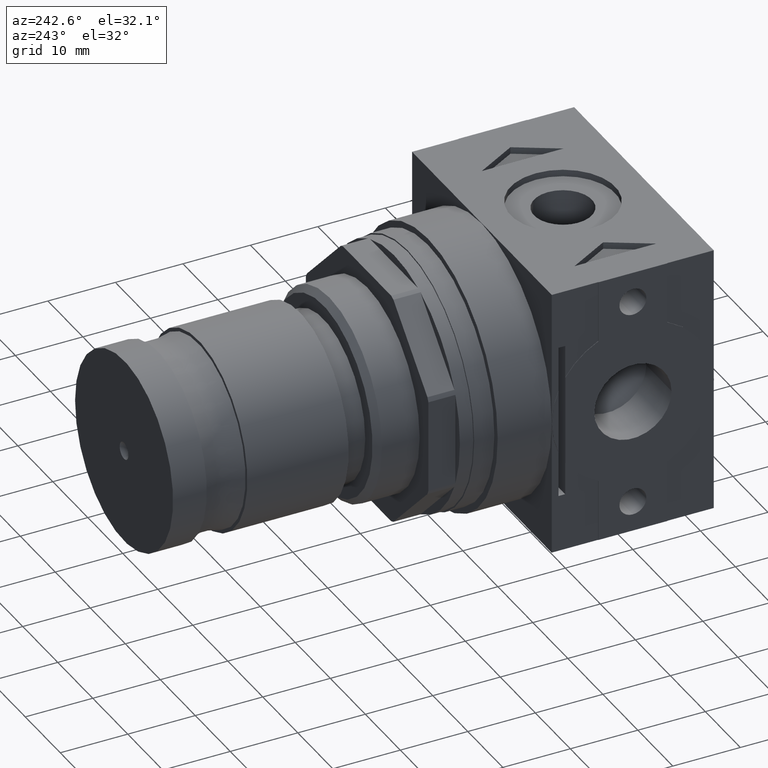
[diagram: clean part render]
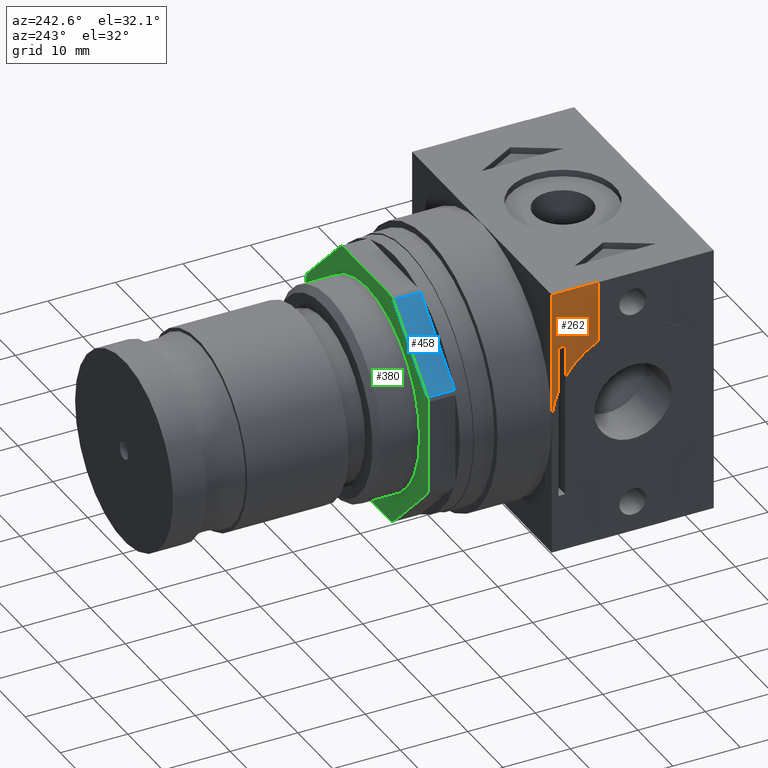
[diagram: same view with three faces highlighted in distinct colors, each labeled with its STEP entity id]
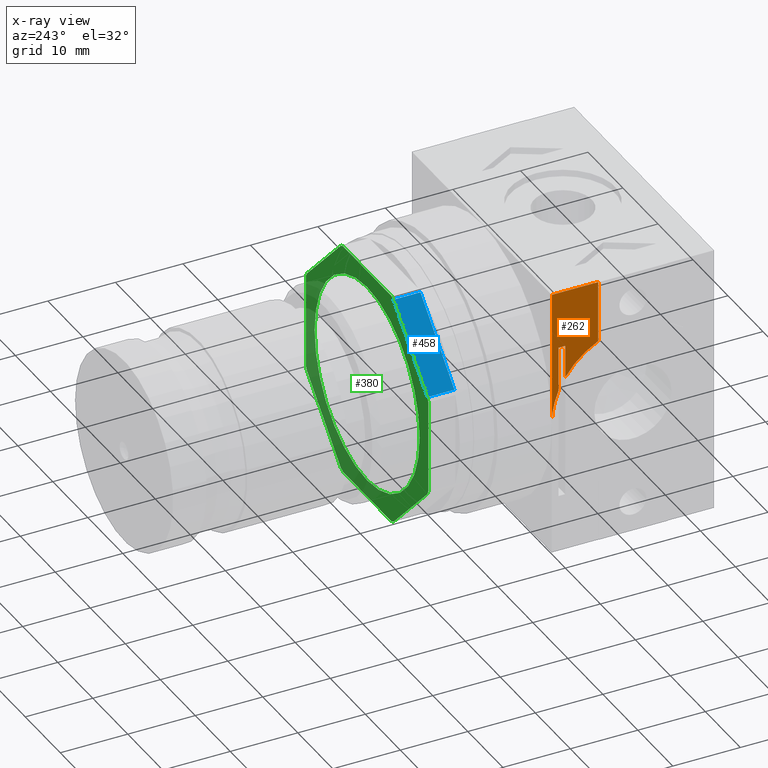
[diagram: x-ray of the same camera — body ghosted, the three highlighted faces saturated]
A machine part, auxiliary view with three faces highlighted in distinct colors.
The next image is the same camera in x-ray (body ghosted, the three faces saturated) — at least one of them is partly hidden behind the body in this view.
Their STEP definitions:

[orange] entity #262 — the highlighted planar face has unit normal (1, 0, 0).
#262 = ADVANCED_FACE( '', ( #592 ), #593, .F. );
#592 = FACE_OUTER_BOUND( '', #1037, .T. );
#593 = PLANE( '', #1038 );
#1037 = EDGE_LOOP( '', ( #1564, #1565, #1566, #1567, #1568, #1569, #1570, #1571 ) );
#1038 = AXIS2_PLACEMENT_3D( '', #1572, #1573, #1574 );
#1564 = ORIENTED_EDGE( '', *, *, #2517, .F. );
#1565 = ORIENTED_EDGE( '', *, *, #2518, .F. );
#1566 = ORIENTED_EDGE( '', *, *, #2519, .F. );
#1567 = ORIENTED_EDGE( '', *, *, #2520, .F. );
#1568 = ORIENTED_EDGE( '', *, *, #2521, .F. );
#1569 = ORIENTED_EDGE( '', *, *, #2522, .F. );
#1570 = ORIENTED_EDGE( '', *, *, #2523, .F. );
#1571 = ORIENTED_EDGE( '', *, *, #2524, .F. );
#1572 = CARTESIAN_POINT( '', ( -19.9500000000000, 0.000000000000000, 0.000000000000000 ) );
#1573 = DIRECTION( '', ( 1.00000000000000, 0.000000000000000, 0.000000000000000 ) );
#1574 = DIRECTION( '', ( 0.000000000000000, 0.000000000000000, -1.00000000000000 ) );
#2517 = EDGE_CURVE( '', #2973, #2974, #2975, .T. );
#2518 = EDGE_CURVE( '', #2976, #2973, #2977, .F. );
#2519 = EDGE_CURVE( '', #2978, #2976, #2979, .T. );
#2520 = EDGE_CURVE( '', #2980, #2978, #2981, .T. );
#2521 = EDGE_CURVE( '', #2982, #2980, #2983, .T. );
#2522 = EDGE_CURVE( '', #2984, #2982, #2985, .F. );
#2523 = EDGE_CURVE( '', #2986, #2984, #2987, .T. );
#2524 = EDGE_CURVE( '', #2974, #2986, #2988, .T. );
#2973 = VERTEX_POINT( '', #3598 );
#2974 = VERTEX_POINT( '', #3599 );
#2975 = LINE( '', #3600, #3601 );
#2976 = VERTEX_POINT( '', #3602 );
#2977 = CIRCLE( '', #3603, 12.0000000000000 );
#2978 = VERTEX_POINT( '', #3604 );
#2979 = LINE( '', #3605, #3606 );
#2980 = VERTEX_POINT( '', #3607 );
#2981 = LINE( '', #3608, #3609 );
#2982 = VERTEX_POINT( '', #3610 );
#2983 = LINE( '', #3611, #3612 );
#2984 = VERTEX_POINT( '', #3613 );
#2985 = CIRCLE( '', #3614, 12.0000000000000 );
#2986 = VERTEX_POINT( '', #3615 );
#2987 = LINE( '', #3616, #3617 );
#2988 = LINE( '', #3618, #3619 );
#3598 = CARTESIAN_POINT( '', ( -19.9500000000000, 10.0000000000000, 6.63324958071079 ) );
#3599 = CARTESIAN_POINT( '', ( -19.9500000000000, 10.0000000000000, 11.5000000000000 ) );
#3600 = CARTESIAN_POINT( '', ( -19.9500000000000, 10.0000000000000, 0.000000000000000 ) );
#3601 = VECTOR( '', #4244, 1000.00000000000 );
#3602 = CARTESIAN_POINT( '', ( -19.9500000000000, 5.10000000000000, 10.8623201941390 ) );
#3603 = AXIS2_PLACEMENT_3D( '', #4245, #4246, #4247 );
#3604 = CARTESIAN_POINT( '', ( -19.9500000000000, 5.10000000000000, 20.0000000000000 ) );
#3605 = CARTESIAN_POINT( '', ( -19.9500000000000, 5.10000000000000, 0.000000000000000 ) );
#3606 = VECTOR( '', #4248, 1000.00000000000 );
#3607 = CARTESIAN_POINT( '', ( -19.9500000000000, 12.0000000000000, 20.0000000000000 ) );
#3608 = CARTESIAN_POINT( '', ( -19.9500000000000, 12.0000000000000, 20.0000000000000 ) );
#3609 = VECTOR( '', #4249, 1000.00000000000 );
#3610 = CARTESIAN_POINT( '', ( -19.9500000000000, 12.0000000000000, 0.000000000000000 ) );
#3611 = CARTESIAN_POINT( '', ( -19.9500000000000, 12.0000000000000, -20.0000000000000 ) );
#3612 = VECTOR( '', #4250, 1000.00000000000 );
#3613 = CARTESIAN_POINT( '', ( -19.9500000000000, 11.0000000000000, 4.79583152331270 ) );
#3614 = AXIS2_PLACEMENT_3D( '', #4251, #4252, #4253 );
#3615 = CARTESIAN_POINT( '', ( -19.9500000000000, 11.0000000000000, 11.5000000000000 ) );
#3616 = CARTESIAN_POINT( '', ( -19.9500000000000, 11.0000000000000, 0.000000000000000 ) );
#3617 = VECTOR( '', #4254, 1000.00000000000 );
#3618 = CARTESIAN_POINT( '', ( -19.9500000000000, 0.000000000000000, 11.5000000000000 ) );
#3619 = VECTOR( '', #4255, 1000.00000000000 );
#4244 = DIRECTION( '', ( 0.000000000000000, -0.000000000000000, 1.00000000000000 ) );
#4245 = CARTESIAN_POINT( '', ( -19.9500000000000, -8.67361737988404E-015, -1.73472347597681E-015 ) );
#4246 = DIRECTION( '', ( 1.00000000000000, 0.000000000000000, 0.000000000000000 ) );
#4247 = DIRECTION( '', ( 0.000000000000000, 0.000000000000000, -1.00000000000000 ) );
#4248 = DIRECTION( '', ( 0.000000000000000, 0.000000000000000, -1.00000000000000 ) );
#4249 = DIRECTION( '', ( 0.000000000000000, -1.00000000000000, 0.000000000000000 ) );
#4250 = DIRECTION( '', ( 0.000000000000000, 0.000000000000000, 1.00000000000000 ) );
#4251 = CARTESIAN_POINT( '', ( -19.9500000000000, -8.67361737988404E-015, -1.73472347597681E-015 ) );
#4252 = DIRECTION( '', ( 1.00000000000000, 0.000000000000000, 0.000000000000000 ) );
#4253 = DIRECTION( '', ( 0.000000000000000, 0.000000000000000, -1.00000000000000 ) );
#4254 = DIRECTION( '', ( 0.000000000000000, 0.000000000000000, -1.00000000000000 ) );
#4255 = DIRECTION( '', ( -0.000000000000000, 1.00000000000000, 0.000000000000000 ) );

[blue] entity #458 — the highlighted planar face has unit normal (-0.7071, 0, 0.7071).
#458 = ADVANCED_FACE( '', ( #925 ), #926, .T. );
#925 = FACE_OUTER_BOUND( '', #1370, .T. );
#926 = PLANE( '', #1371 );
#1370 = EDGE_LOOP( '', ( #2391, #2392, #2393, #2394 ) );
#1371 = AXIS2_PLACEMENT_3D( '', #2395, #2396, #2397 );
#2391 = ORIENTED_EDGE( '', *, *, #2599, .T. );
#2392 = ORIENTED_EDGE( '', *, *, #2731, .T. );
#2393 = ORIENTED_EDGE( '', *, *, #2601, .T. );
#2394 = ORIENTED_EDGE( '', *, *, #2795, .T. );
#2395 = CARTESIAN_POINT( '', ( 5.00000000000000, -7.24873734152916, 17.5000000000000 ) );
#2396 = DIRECTION( '', ( 0.000000000000000, -0.707106781186547, 0.707106781186548 ) );
#2397 = DIRECTION( '', ( 0.000000000000000, -0.707106781186548, -0.707106781186547 ) );
#2599 = EDGE_CURVE( '', #3109, #3107, #3110, .T. );
#2601 = EDGE_CURVE( '', #3113, #3111, #3114, .F. );
#2731 = EDGE_CURVE( '', #3107, #3113, #3291, .T. );
#2795 = EDGE_CURVE( '', #3111, #3109, #3366, .T. );
#3107 = VERTEX_POINT( '', #3770 );
#3109 = VERTEX_POINT( '', #3772 );
#3110 = LINE( '', #3773, #3774 );
#3111 = VERTEX_POINT( '', #3775 );
#3113 = VERTEX_POINT( '', #3777 );
#3114 = LINE( '', #3778, #3779 );
#3291 = LINE( '', #4016, #4017 );
#3366 = LINE( '', #4119, #4120 );
#3770 = CARTESIAN_POINT( '', ( 9.00000000000000, -17.2318371472449, 7.51690019428426 ) );
#3772 = CARTESIAN_POINT( '', ( 5.00000000000000, -17.2318371472449, 7.51690019428426 ) );
#3773 = CARTESIAN_POINT( '', ( 9.00000000000000, -17.2318371472449, 7.51690019428426 ) );
#3774 = VECTOR( '', #4360, 1000.00000000000 );
#3775 = CARTESIAN_POINT( '', ( 5.00000000000000, -7.51690019428426, 17.2318371472449 ) );
#3777 = CARTESIAN_POINT( '', ( 9.00000000000000, -7.51690019428426, 17.2318371472449 ) );
#3778 = CARTESIAN_POINT( '', ( 9.00000000000000, -7.51690019428426, 17.2318371472449 ) );
#3779 = VECTOR( '', #4364, 1000.00000000000 );
#4016 = CARTESIAN_POINT( '', ( 9.00000000000000, -2.97436867076458, 21.7743686707646 ) );
#4017 = VECTOR( '', #4500, 1000.00000000000 );
#4119 = CARTESIAN_POINT( '', ( 5.00000000000000, -7.24873734152916, 17.5000000000000 ) );
#4120 = VECTOR( '', #4552, 1000.00000000000 );
#4360 = DIRECTION( '', ( 1.00000000000000, -0.000000000000000, -0.000000000000000 ) );
#4364 = DIRECTION( '', ( 1.00000000000000, -0.000000000000000, -0.000000000000000 ) );
#4500 = DIRECTION( '', ( 0.000000000000000, 0.707106781186548, 0.707106781186547 ) );
#4552 = DIRECTION( '', ( 0.000000000000000, -0.707106781186548, -0.707106781186547 ) );

[green] entity #380 — the highlighted planar face has unit normal (0, -1, 0).
#380 = ADVANCED_FACE( '', ( #790, #791 ), #792, .F. );
#790 = FACE_BOUND( '', #1235, .T. );
#791 = FACE_OUTER_BOUND( '', #1236, .T. );
#792 = PLANE( '', #1237 );
#1235 = EDGE_LOOP( '', ( #2040 ) );
#1236 = EDGE_LOOP( '', ( #2041, #2042, #2043, #2044, #2045, #2046, #2047, #2048, #2049, #2050, #2051, #2052, #2053, #2054, #2055, #2056 ) );
#1237 = AXIS2_PLACEMENT_3D( '', #2057, #2058, #2059 );
#2040 = ORIENTED_EDGE( '', *, *, #2730, .F. );
#2041 = ORIENTED_EDGE( '', *, *, #2546, .F. );
#2042 = ORIENTED_EDGE( '', *, *, #2606, .T. );
#2043 = ORIENTED_EDGE( '', *, *, #2442, .F. );
#2044 = ORIENTED_EDGE( '', *, *, #2604, .T. );
#2045 = ORIENTED_EDGE( '', *, *, #2462, .F. );
#2046 = ORIENTED_EDGE( '', *, *, #2602, .T. );
#2047 = ORIENTED_EDGE( '', *, *, #2731, .F. );
#2048 = ORIENTED_EDGE( '', *, *, #2598, .T. );
#2049 = ORIENTED_EDGE( '', *, *, #2732, .F. );
#2050 = ORIENTED_EDGE( '', *, *, #2595, .T. );
#2051 = ORIENTED_EDGE( '', *, *, #2658, .F. );
#2052 = ORIENTED_EDGE( '', *, *, #2591, .T. );
#2053 = ORIENTED_EDGE( '', *, *, #2733, .F. );
#2054 = ORIENTED_EDGE( '', *, *, #2588, .T. );
#2055 = ORIENTED_EDGE( '', *, *, #2734, .F. );
#2056 = ORIENTED_EDGE( '', *, *, #2584, .T. );
#2057 = CARTESIAN_POINT( '', ( 9.00000000000000, 18.8000000000000, 0.000000000000000 ) );
#2058 = DIRECTION( '', ( -1.00000000000000, 0.000000000000000, 0.000000000000000 ) );
#2059 = DIRECTION( '', ( 0.000000000000000, 0.000000000000000, 1.00000000000000 ) );
#2442 = EDGE_CURVE( '', #2851, #2853, #2854, .T. );
#2462 = EDGE_CURVE( '', #2885, #2887, #2888, .T. );
#2546 = EDGE_CURVE( '', #3022, #3024, #3025, .T. );
#2584 = EDGE_CURVE( '', #3081, #3024, #3082, .T. );
#2588 = EDGE_CURVE( '', #3089, #3087, #3090, .T. );
#2591 = EDGE_CURVE( '', #3094, #3092, #3095, .T. );
#2595 = EDGE_CURVE( '', #3102, #3100, #3103, .T. );
#2598 = EDGE_CURVE( '', #3107, #3105, #3108, .T. );
#2602 = EDGE_CURVE( '', #2885, #3113, #3115, .T. );
#2604 = EDGE_CURVE( '', #2851, #2887, #3117, .T. );
#2606 = EDGE_CURVE( '', #3022, #2853, #3119, .T. );
#2658 = EDGE_CURVE( '', #3094, #3100, #3201, .T. );
#2730 = EDGE_CURVE( '', #3289, #3289, #3290, .T. );
#2731 = EDGE_CURVE( '', #3107, #3113, #3291, .T. );
#2732 = EDGE_CURVE( '', #3102, #3105, #3292, .T. );
#2733 = EDGE_CURVE( '', #3089, #3092, #3293, .T. );
#2734 = EDGE_CURVE( '', #3081, #3087, #3294, .T. );
#2851 = VERTEX_POINT( '', #3440 );
#2853 = VERTEX_POINT( '', #3443 );
#2854 = LINE( '', #3444, #3445 );
#2885 = VERTEX_POINT( '', #3479 );
#2887 = VERTEX_POINT( '', #3482 );
#2888 = LINE( '', #3483, #3484 );
#3022 = VERTEX_POINT( '', #3661 );
#3024 = VERTEX_POINT( '', #3664 );
#3025 = LINE( '', #3665, #3666 );
#3081 = VERTEX_POINT( '', #3736 );
#3082 = CIRCLE( '', #3737, 18.8000000000000 );
#3087 = VERTEX_POINT( '', #3743 );
#3089 = VERTEX_POINT( '', #3746 );
#3090 = CIRCLE( '', #3747, 18.8000000000000 );
#3092 = VERTEX_POINT( '', #3750 );
#3094 = VERTEX_POINT( '', #3753 );
#3095 = CIRCLE( '', #3754, 18.8000000000000 );
#3100 = VERTEX_POINT( '', #3760 );
#3102 = VERTEX_POINT( '', #3763 );
#3103 = CIRCLE( '', #3764, 18.8000000000000 );
#3105 = VERTEX_POINT( '', #3767 );
#3107 = VERTEX_POINT( '', #3770 );
#3108 = CIRCLE( '', #3771, 18.8000000000000 );
#3113 = VERTEX_POINT( '', #3777 );
#3115 = CIRCLE( '', #3780, 18.8000000000000 );
#3117 = CIRCLE( '', #3782, 18.8000000000000 );
#3119 = CIRCLE( '', #3784, 18.8000000000000 );
#3201 = LINE( '', #3889, #3890 );
#3289 = VERTEX_POINT( '', #4014 );
#3290 = CIRCLE( '', #4015, 15.0000000000000 );
#3291 = LINE( '', #4016, #4017 );
#3292 = LINE( '', #4018, #4019 );
#3293 = LINE( '', #4020, #4021 );
#3294 = LINE( '', #4022, #4023 );
#3440 = CARTESIAN_POINT( '', ( 9.00000000000000, 7.51690019428427, 17.2318371472449 ) );
#3443 = CARTESIAN_POINT( '', ( 9.00000000000000, 17.2318371472449, 7.51690019428425 ) );
#3444 = CARTESIAN_POINT( '', ( 9.00000000000000, 21.7743686707646, 2.97436867076457 ) );
#3445 = VECTOR( '', #4158, 1000.00000000000 );
#3479 = CARTESIAN_POINT( '', ( 9.00000000000000, -6.86949779823824, 17.5000000000000 ) );
#3482 = CARTESIAN_POINT( '', ( 9.00000000000000, 6.86949779823824, 17.5000000000000 ) );
#3483 = CARTESIAN_POINT( '', ( 9.00000000000000, 18.8000000000000, 17.5000000000000 ) );
#3484 = VECTOR( '', #4190, 1000.00000000000 );
#3661 = CARTESIAN_POINT( '', ( 9.00000000000000, 17.5000000000000, 6.86949779823823 ) );
#3664 = CARTESIAN_POINT( '', ( 9.00000000000000, 17.5000000000000, -6.86949779823825 ) );
#3665 = CARTESIAN_POINT( '', ( 9.00000000000000, 17.5000000000000, 6.22216094339575E-016 ) );
#3666 = VECTOR( '', #4286, 1000.00000000000 );
#3736 = CARTESIAN_POINT( '', ( 9.00000000000000, 17.2318371472449, -7.51690019428427 ) );
#3737 = AXIS2_PLACEMENT_3D( '', #4331, #4332, #4333 );
#3743 = CARTESIAN_POINT( '', ( 9.00000000000000, 7.51690019428426, -17.2318371472449 ) );
#3746 = CARTESIAN_POINT( '', ( 9.00000000000000, 6.86949779823823, -17.5000000000000 ) );
#3747 = AXIS2_PLACEMENT_3D( '', #4339, #4340, #4341 );
#3750 = CARTESIAN_POINT( '', ( 9.00000000000000, -6.86949779823824, -17.5000000000000 ) );
#3753 = CARTESIAN_POINT( '', ( 9.00000000000000, -7.51690019428426, -17.2318371472449 ) );
#3754 = AXIS2_PLACEMENT_3D( '', #4344, #4345, #4346 );
#3760 = CARTESIAN_POINT( '', ( 9.00000000000000, -17.2318371472449, -7.51690019428426 ) );
#3763 = CARTESIAN_POINT( '', ( 9.00000000000000, -17.5000000000000, -6.86949779823824 ) );
#3764 = AXIS2_PLACEMENT_3D( '', #4352, #4353, #4354 );
#3767 = CARTESIAN_POINT( '', ( 9.00000000000000, -17.5000000000000, 6.86949779823825 ) );
#3770 = CARTESIAN_POINT( '', ( 9.00000000000000, -17.2318371472449, 7.51690019428426 ) );
#3771 = AXIS2_PLACEMENT_3D( '', #4357, #4358, #4359 );
#3777 = CARTESIAN_POINT( '', ( 9.00000000000000, -7.51690019428426, 17.2318371472449 ) );
#3780 = AXIS2_PLACEMENT_3D( '', #4365, #4366, #4367 );
#3782 = AXIS2_PLACEMENT_3D( '', #4371, #4372, #4373 );
#3784 = AXIS2_PLACEMENT_3D( '', #4377, #4378, #4379 );
#3889 = CARTESIAN_POINT( '', ( 9.00000000000000, -2.97436867076459, -21.7743686707646 ) );
#3890 = VECTOR( '', #4439, 1000.00000000000 );
#4014 = CARTESIAN_POINT( '', ( 9.00000000000000, 0.000000000000000, -15.0000000000000 ) );
#4015 = AXIS2_PLACEMENT_3D( '', #4497, #4498, #4499 );
#4016 = CARTESIAN_POINT( '', ( 9.00000000000000, -2.97436867076458, 21.7743686707646 ) );
#4017 = VECTOR( '', #4500, 1000.00000000000 );
#4018 = CARTESIAN_POINT( '', ( 9.00000000000000, -17.5000000000000, 8.68709393251020E-015 ) );
#4019 = VECTOR( '', #4501, 1000.00000000000 );
#4020 = CARTESIAN_POINT( '', ( 9.00000000000000, 18.8000000000000, -17.5000000000000 ) );
#4021 = VECTOR( '', #4502, 1000.00000000000 );
#4022 = CARTESIAN_POINT( '', ( 9.00000000000000, 21.7743686707646, -2.97436867076458 ) );
#4023 = VECTOR( '', #4503, 1000.00000000000 );
#4158 = DIRECTION( '', ( 0.000000000000000, 0.707106781186547, -0.707106781186548 ) );
#4190 = DIRECTION( '', ( 0.000000000000000, 1.00000000000000, 0.000000000000000 ) );
#4286 = DIRECTION( '', ( 0.000000000000000, -4.78627764876595E-016, -1.00000000000000 ) );
#4331 = CARTESIAN_POINT( '', ( 9.00000000000000, 0.000000000000000, 0.000000000000000 ) );
#4332 = DIRECTION( '', ( 1.00000000000000, 0.000000000000000, -0.000000000000000 ) );
#4333 = DIRECTION( '', ( -0.000000000000000, 0.000000000000000, -1.00000000000000 ) );
#4339 = CARTESIAN_POINT( '', ( 9.00000000000000, 0.000000000000000, 0.000000000000000 ) );
#4340 = DIRECTION( '', ( 1.00000000000000, 0.000000000000000, -0.000000000000000 ) );
#4341 = DIRECTION( '', ( -0.000000000000000, 0.000000000000000, -1.00000000000000 ) );
#4344 = CARTESIAN_POINT( '', ( 9.00000000000000, 0.000000000000000, 0.000000000000000 ) );
#4345 = DIRECTION( '', ( 1.00000000000000, 0.000000000000000, -0.000000000000000 ) );
#4346 = DIRECTION( '', ( -0.000000000000000, 0.000000000000000, -1.00000000000000 ) );
#4352 = CARTESIAN_POINT( '', ( 9.00000000000000, 0.000000000000000, 0.000000000000000 ) );
#4353 = DIRECTION( '', ( 1.00000000000000, 0.000000000000000, -0.000000000000000 ) );
#4354 = DIRECTION( '', ( -0.000000000000000, 0.000000000000000, -1.00000000000000 ) );
#4357 = CARTESIAN_POINT( '', ( 9.00000000000000, 0.000000000000000, 0.000000000000000 ) );
#4358 = DIRECTION( '', ( 1.00000000000000, 0.000000000000000, -0.000000000000000 ) );
#4359 = DIRECTION( '', ( -0.000000000000000, 0.000000000000000, -1.00000000000000 ) );
#4365 = CARTESIAN_POINT( '', ( 9.00000000000000, 0.000000000000000, 0.000000000000000 ) );
#4366 = DIRECTION( '', ( 1.00000000000000, 0.000000000000000, -0.000000000000000 ) );
#4367 = DIRECTION( '', ( -0.000000000000000, 0.000000000000000, -1.00000000000000 ) );
#4371 = CARTESIAN_POINT( '', ( 9.00000000000000, 0.000000000000000, 0.000000000000000 ) );
#4372 = DIRECTION( '', ( 1.00000000000000, 0.000000000000000, -0.000000000000000 ) );
#4373 = DIRECTION( '', ( -0.000000000000000, 0.000000000000000, -1.00000000000000 ) );
#4377 = CARTESIAN_POINT( '', ( 9.00000000000000, 0.000000000000000, 0.000000000000000 ) );
#4378 = DIRECTION( '', ( 1.00000000000000, 0.000000000000000, -0.000000000000000 ) );
#4379 = DIRECTION( '', ( -0.000000000000000, 0.000000000000000, -1.00000000000000 ) );
#4439 = DIRECTION( '', ( 0.000000000000000, -0.707106781186547, 0.707106781186548 ) );
#4497 = CARTESIAN_POINT( '', ( 9.00000000000000, 0.000000000000000, 0.000000000000000 ) );
#4498 = DIRECTION( '', ( 1.00000000000000, 0.000000000000000, -0.000000000000000 ) );
#4499 = DIRECTION( '', ( -0.000000000000000, 0.000000000000000, -1.00000000000000 ) );
#4500 = DIRECTION( '', ( 0.000000000000000, 0.707106781186548, 0.707106781186547 ) );
#4501 = DIRECTION( '', ( 0.000000000000000, 2.39313882438298E-016, 1.00000000000000 ) );
#4502 = DIRECTION( '', ( 0.000000000000000, -1.00000000000000, 2.39313882438298E-016 ) );
#4503 = DIRECTION( '', ( 0.000000000000000, -0.707106781186548, -0.707106781186547 ) );